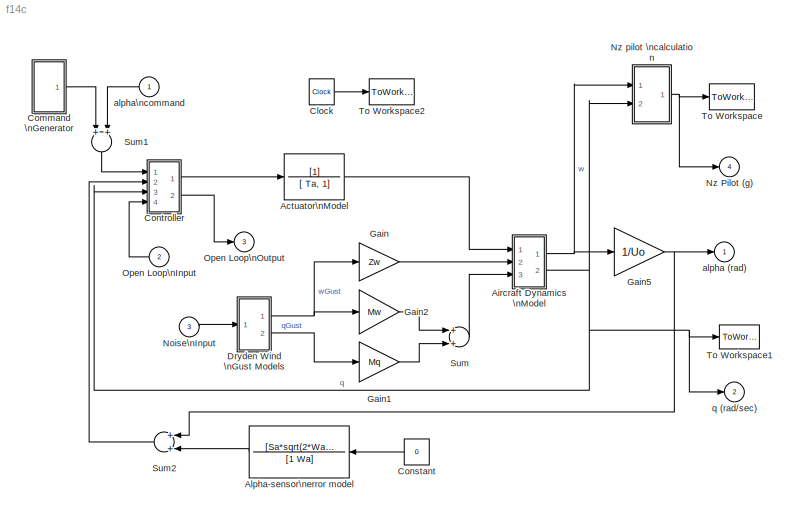
MODEL f14c
KIND model
CONFIG PreLoadFcn = f14dat
BLOCK [TransferFcn] Actuator\nModel
  Denominator = [ Ta, 1]
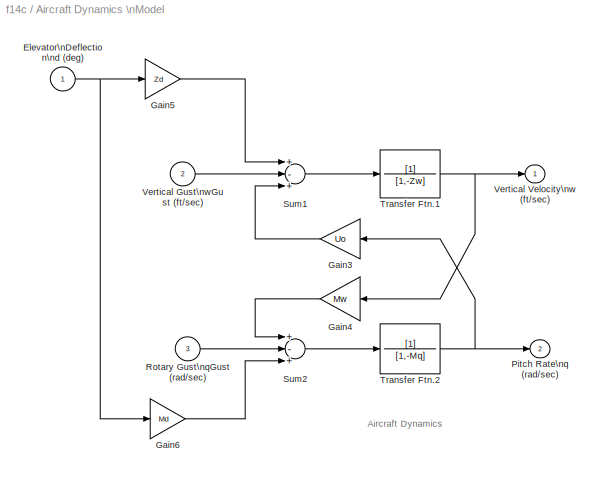
BLOCK [SubSystem] Aircraft Dynamics \nModel
  MinAlgLoopOccurrences = off
  Ports = [3, 2]
  PropExecContextAcrossSSBoundary = on
  RTWSystemCode = Auto
  ShowPortLabels = off
  TreatAsAtomicUnit = off
BLOCK [Inport] Aircraft Dynamics \nModel/Elevator\nDeflection\nd (deg)
  IconDisplay = Port number
  LatchInput = off
  Port = 1
BLOCK [Gain] Aircraft Dynamics \nModel/Gain3
  Gain = Uo
BLOCK [Gain] Aircraft Dynamics \nModel/Gain4
  Gain = Mw
BLOCK [Gain] Aircraft Dynamics \nModel/Gain5
  Gain = Zd
BLOCK [Gain] Aircraft Dynamics \nModel/Gain6
  Gain = Md
BLOCK [Outport] Aircraft Dynamics \nModel/Pitch Rate\nq (rad//sec)
  IconDisplay = Port number
  InitialOutput = 0
  Port = 2
BLOCK [Inport] Aircraft Dynamics \nModel/Rotary Gust\nqGust (rad//sec)
  IconDisplay = Port number
  LatchInput = off
  Port = 3
BLOCK [Sum] Aircraft Dynamics \nModel/Sum1
  Inputs = +-+
  Ports = [3, 1]
BLOCK [Sum] Aircraft Dynamics \nModel/Sum2
  Inputs = +-+
  Ports = [3, 1]
BLOCK [TransferFcn] Aircraft Dynamics \nModel/Transfer Ftn.1 
  Denominator = [1,-Zw]
BLOCK [TransferFcn] Aircraft Dynamics \nModel/Transfer Ftn.2
  Denominator = [1,-Mq]
BLOCK [Inport] Aircraft Dynamics \nModel/Vertical Gust\nwGust (ft//sec)
  IconDisplay = Port number
  LatchInput = off
  Port = 2
BLOCK [Outport] Aircraft Dynamics \nModel/Vertical Velocity\nw (ft//sec)
  IconDisplay = Port number
  InitialOutput = 0
BLOCK [TransferFcn] Alpha-sensor\nerror model
  Denominator = [1 Wa]
  Numerator = [Sa*sqrt(2*Wa)]
BLOCK [Clock] Clock
  Decimation = 10
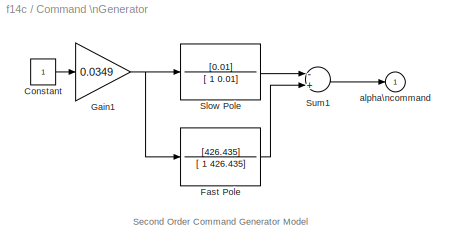
BLOCK [SubSystem] Command \nGenerator
  MinAlgLoopOccurrences = off
  Ports = [0, 1]
  PropExecContextAcrossSSBoundary = on
  RTWSystemCode = Auto
  ShowPortLabels = off
  TreatAsAtomicUnit = off
BLOCK [Constant] Command \nGenerator/Constant
BLOCK [TransferFcn] Command \nGenerator/Fast Pole
  Denominator = [ 1 426.435]
  Numerator = [426.435]
BLOCK [Gain] Command \nGenerator/Gain1
  Gain = 0.0349
BLOCK [TransferFcn] Command \nGenerator/Slow Pole
  Denominator = [ 1 0.01]
  Numerator = [0.01]
BLOCK [Sum] Command \nGenerator/Sum1
  Inputs = -+
  Ports = [2, 1]
BLOCK [Outport] Command \nGenerator/alpha\ncommand
  IconDisplay = Port number
  InitialOutput = 0
BLOCK [Constant] Constant
  Value = 0
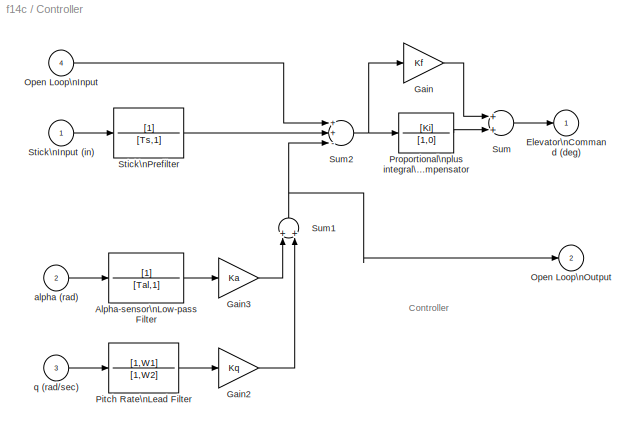
BLOCK [SubSystem] Controller
  MinAlgLoopOccurrences = off
  Ports = [4, 2]
  PropExecContextAcrossSSBoundary = on
  RTWSystemCode = Auto
  ShowPortLabels = off
  TreatAsAtomicUnit = off
BLOCK [TransferFcn] Controller/Alpha-sensor\nLow-pass Filter
  Denominator = [Tal,1]
BLOCK [Outport] Controller/Elevator\nCommand (deg)
  IconDisplay = Port number
  InitialOutput = 0
BLOCK [Gain] Controller/Gain
  Gain = Kf
BLOCK [Gain] Controller/Gain2
  Gain = Kq
BLOCK [Gain] Controller/Gain3
  Gain = Ka
BLOCK [Inport] Controller/Open Loop\nInput
  IconDisplay = Port number
  LatchInput = off
  Port = 4
BLOCK [Outport] Controller/Open Loop\nOutput
  IconDisplay = Port number
  InitialOutput = 0
  Port = 2
BLOCK [TransferFcn] Controller/Pitch Rate\nLead Filter
  Denominator = [1,W2]
  Numerator = [1,W1]
BLOCK [TransferFcn] Controller/Proportional\nplus integral\ncompensator
  Denominator = [1,0]
  Numerator = [Ki]
BLOCK [Inport] Controller/Stick\nInput (in)
  IconDisplay = Port number
  LatchInput = off
  Port = 1
BLOCK [TransferFcn] Controller/Stick\nPrefilter
  Denominator = [Ts,1]
BLOCK [Sum] Controller/Sum
  Inputs = 2
  Ports = [2, 1]
BLOCK [Sum] Controller/Sum1
  Inputs = 2
  Ports = [2, 1]
BLOCK [Sum] Controller/Sum2
  Inputs = ++-
  Ports = [3, 1]
BLOCK [Inport] Controller/alpha (rad)
  IconDisplay = Port number
  LatchInput = off
  Port = 2
BLOCK [Inport] Controller/q (rad//sec)
  IconDisplay = Port number
  LatchInput = off
  Port = 3
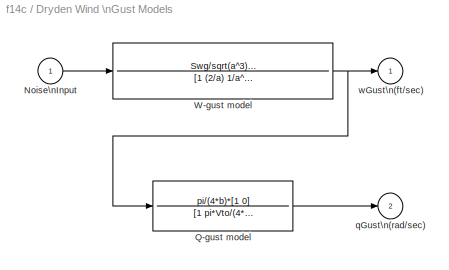
BLOCK [SubSystem] Dryden Wind \nGust Models
  MinAlgLoopOccurrences = off
  Ports = [1, 2]
  PropExecContextAcrossSSBoundary = on
  RTWSystemCode = Auto
  ShowPortLabels = off
  TreatAsAtomicUnit = off
BLOCK [Inport] Dryden Wind \nGust Models/Noise\nInput
  IconDisplay = Port number
  LatchInput = off
  Port = 1
BLOCK [TransferFcn] Dryden Wind \nGust Models/Q-gust model
  Denominator = [1 pi*Vto/(4*b)]
  Numerator = pi/(4*b)*[1 0]
BLOCK [TransferFcn] Dryden Wind \nGust Models/W-gust model
  Denominator = [1 (2/a) 1/a^2]
  Numerator = Swg/sqrt(a^3)*[sqrt(3)*a,1]
BLOCK [Outport] Dryden Wind \nGust Models/qGust\n(rad//sec)
  IconDisplay = Port number
  InitialOutput = 0
  Port = 2
BLOCK [Outport] Dryden Wind \nGust Models/wGust\n(ft//sec)
  IconDisplay = Port number
  InitialOutput = 0
BLOCK [Gain] Gain
  Gain = Zw
BLOCK [Gain] Gain1
  Gain = Mq
BLOCK [Gain] Gain2
  Gain = Mw
BLOCK [Gain] Gain5
  Gain = 1/Uo
BLOCK [Inport] Noise\nInput
  IconDisplay = Port number
  LatchInput = off
  Port = 3
BLOCK [Outport] Nz Pilot (g)
  IconDisplay = Port number
  InitialOutput = 0
  Port = 4
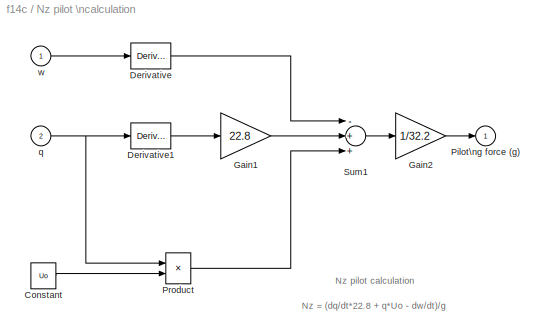
BLOCK [SubSystem] Nz pilot \ncalculation
  MinAlgLoopOccurrences = off
  Ports = [2, 1]
  PropExecContextAcrossSSBoundary = on
  RTWSystemCode = Auto
  ShowPortLabels = off
  TreatAsAtomicUnit = off
BLOCK [Constant] Nz pilot \ncalculation/Constant
  Value = Uo
BLOCK [Derivative] Nz pilot \ncalculation/Derivative
BLOCK [Derivative] Nz pilot \ncalculation/Derivative1
BLOCK [Gain] Nz pilot \ncalculation/Gain1
  Gain = 22.8
BLOCK [Gain] Nz pilot \ncalculation/Gain2
  Gain = 1/32.2
BLOCK [Outport] Nz pilot \ncalculation/Pilot\ng force (g)
  IconDisplay = Port number
  InitialOutput = 0
BLOCK [Product] Nz pilot \ncalculation/Product
  Ports = [2, 1]
BLOCK [Sum] Nz pilot \ncalculation/Sum1
  Inputs = -++
  Ports = [3, 1]
BLOCK [Inport] Nz pilot \ncalculation/q
  IconDisplay = Port number
  LatchInput = off
  Port = 2
BLOCK [Inport] Nz pilot \ncalculation/w
  IconDisplay = Port number
  LatchInput = off
  Port = 1
BLOCK [Inport] Open Loop\nInput
  IconDisplay = Port number
  LatchInput = off
  Port = 2
BLOCK [Outport] Open Loop\nOutput
  IconDisplay = Port number
  InitialOutput = 0
  Port = 3
BLOCK [Sum] Sum
  Ports = [2, 1]
BLOCK [Sum] Sum1
  Ports = [2, 1]
BLOCK [Sum] Sum2
  Ports = [2, 1]
BLOCK [ToWorkspace] To Workspace
  SampleTime = -1
  SaveFormat = Array
  VariableName = Nzp
BLOCK [ToWorkspace] To Workspace1
  SampleTime = -1
  SaveFormat = Array
  VariableName = q
BLOCK [ToWorkspace] To Workspace2
  SampleTime = -1
  SaveFormat = Array
  VariableName = t
BLOCK [Outport] alpha (rad)
  IconDisplay = Port number
  InitialOutput = 0
BLOCK [Inport] alpha\ncommand
  IconDisplay = Port number
  LatchInput = off
  Port = 1
BLOCK [Outport] q (rad//sec)
  IconDisplay = Port number
  InitialOutput = 0
  Port = 2
ANNOTATION Aircraft Dynamics \nModel: Aircraft Dynamics
ANNOTATION Command \nGenerator: Second Order Command Generator Model
ANNOTATION Controller: Controller
ANNOTATION Nz pilot \ncalculation: Nz = (dq/dt*22.8 + q*Uo - dw/dt)/g
ANNOTATION Nz pilot \ncalculation: Nz pilot calculation
LINE Actuator\nModel:1 -> Aircraft Dynamics \nModel:1
NET Aircraft Dynamics \nModel/Elevator\nDeflection\nd (deg):1 -> Aircraft Dynamics \nModel/Gain5:1, Aircraft Dynamics \nModel/Gain6:1
LINE Aircraft Dynamics \nModel/Gain3:1 -> Aircraft Dynamics \nModel/Sum1:3
LINE Aircraft Dynamics \nModel/Gain4:1 -> Aircraft Dynamics \nModel/Sum2:1
LINE Aircraft Dynamics \nModel/Gain5:1 -> Aircraft Dynamics \nModel/Sum1:1
LINE Aircraft Dynamics \nModel/Gain6:1 -> Aircraft Dynamics \nModel/Sum2:3
LINE Aircraft Dynamics \nModel/Rotary Gust\nqGust (rad//sec):1 -> Aircraft Dynamics \nModel/Sum2:2
LINE Aircraft Dynamics \nModel/Sum1:1 -> Aircraft Dynamics \nModel/Transfer Ftn.1 :1
LINE Aircraft Dynamics \nModel/Sum2:1 -> Aircraft Dynamics \nModel/Transfer Ftn.2:1
NET Aircraft Dynamics \nModel/Transfer Ftn.1 :1 -> Aircraft Dynamics \nModel/Gain4:1, Aircraft Dynamics \nModel/Vertical Velocity\nw (ft//sec):1
NET Aircraft Dynamics \nModel/Transfer Ftn.2:1 -> Aircraft Dynamics \nModel/Gain3:1, Aircraft Dynamics \nModel/Pitch Rate\nq (rad//sec):1
LINE Aircraft Dynamics \nModel/Vertical Gust\nwGust (ft//sec):1 -> Aircraft Dynamics \nModel/Sum1:2
NET Aircraft Dynamics \nModel:1 -> Gain5:1, Nz pilot \ncalculation:1
NET Aircraft Dynamics \nModel:2 -> Controller:3, Nz pilot \ncalculation:2, To Workspace1:1, q (rad//sec):1
LINE Alpha-sensor\nerror model:1 -> Sum2:2
LINE Clock:1 -> To Workspace2:1
LINE Command \nGenerator/Constant:1 -> Command \nGenerator/Gain1:1
LINE Command \nGenerator/Fast Pole:1 -> Command \nGenerator/Sum1:2
NET Command \nGenerator/Gain1:1 -> Command \nGenerator/Fast Pole:1, Command \nGenerator/Slow Pole:1
LINE Command \nGenerator/Slow Pole:1 -> Command \nGenerator/Sum1:1
LINE Command \nGenerator/Sum1:1 -> Command \nGenerator/alpha\ncommand:1
LINE Command \nGenerator:1 -> Sum1:1
LINE Constant:1 -> Alpha-sensor\nerror model:1
LINE Controller/Alpha-sensor\nLow-pass Filter:1 -> Controller/Gain3:1
LINE Controller/Gain2:1 -> Controller/Sum1:2
LINE Controller/Gain3:1 -> Controller/Sum1:1
LINE Controller/Gain:1 -> Controller/Sum:1
LINE Controller/Open Loop\nInput:1 -> Controller/Sum2:1
LINE Controller/Pitch Rate\nLead Filter:1 -> Controller/Gain2:1
LINE Controller/Proportional\nplus integral\ncompensator:1 -> Controller/Sum:2
LINE Controller/Stick\nInput (in):1 -> Controller/Stick\nPrefilter:1
LINE Controller/Stick\nPrefilter:1 -> Controller/Sum2:2
NET Controller/Sum1:1 -> Controller/Open Loop\nOutput:1, Controller/Sum2:3
NET Controller/Sum2:1 -> Controller/Gain:1, Controller/Proportional\nplus integral\ncompensator:1
LINE Controller/Sum:1 -> Controller/Elevator\nCommand (deg):1
LINE Controller/alpha (rad):1 -> Controller/Alpha-sensor\nLow-pass Filter:1
LINE Controller/q (rad//sec):1 -> Controller/Pitch Rate\nLead Filter:1
LINE Controller:1 -> Actuator\nModel:1
LINE Controller:2 -> Open Loop\nOutput:1
LINE Dryden Wind \nGust Models/Noise\nInput:1 -> Dryden Wind \nGust Models/W-gust model:1
LINE Dryden Wind \nGust Models/Q-gust model:1 -> Dryden Wind \nGust Models/qGust\n(rad//sec):1
NET Dryden Wind \nGust Models/W-gust model:1 -> Dryden Wind \nGust Models/Q-gust model:1, Dryden Wind \nGust Models/wGust\n(ft//sec):1
NET Dryden Wind \nGust Models:1 -> Gain2:1, Gain:1
LINE Dryden Wind \nGust Models:2 -> Gain1:1
LINE Gain1:1 -> Sum:2
LINE Gain2:1 -> Sum:1
NET Gain5:1 -> Sum2:1, alpha (rad):1
LINE Gain:1 -> Aircraft Dynamics \nModel:2
LINE Noise\nInput:1 -> Dryden Wind \nGust Models:1
LINE Nz pilot \ncalculation/Constant:1 -> Nz pilot \ncalculation/Product:2
LINE Nz pilot \ncalculation/Derivative1:1 -> Nz pilot \ncalculation/Gain1:1
LINE Nz pilot \ncalculation/Derivative:1 -> Nz pilot \ncalculation/Sum1:1
LINE Nz pilot \ncalculation/Gain1:1 -> Nz pilot \ncalculation/Sum1:2
LINE Nz pilot \ncalculation/Gain2:1 -> Nz pilot \ncalculation/Pilot\ng force (g):1
LINE Nz pilot \ncalculation/Product:1 -> Nz pilot \ncalculation/Sum1:3
LINE Nz pilot \ncalculation/Sum1:1 -> Nz pilot \ncalculation/Gain2:1
NET Nz pilot \ncalculation/q:1 -> Nz pilot \ncalculation/Derivative1:1, Nz pilot \ncalculation/Product:1
LINE Nz pilot \ncalculation/w:1 -> Nz pilot \ncalculation/Derivative:1
NET Nz pilot \ncalculation:1 -> Nz Pilot (g):1, To Workspace:1
LINE Open Loop\nInput:1 -> Controller:4
LINE Sum1:1 -> Controller:1
LINE Sum2:1 -> Controller:2
LINE Sum:1 -> Aircraft Dynamics \nModel:3
LINE alpha\ncommand:1 -> Sum1:2
note: NET lines group one-source signal fan-out (src -> all destinations, sorted); 1:1 wires keep LINE
